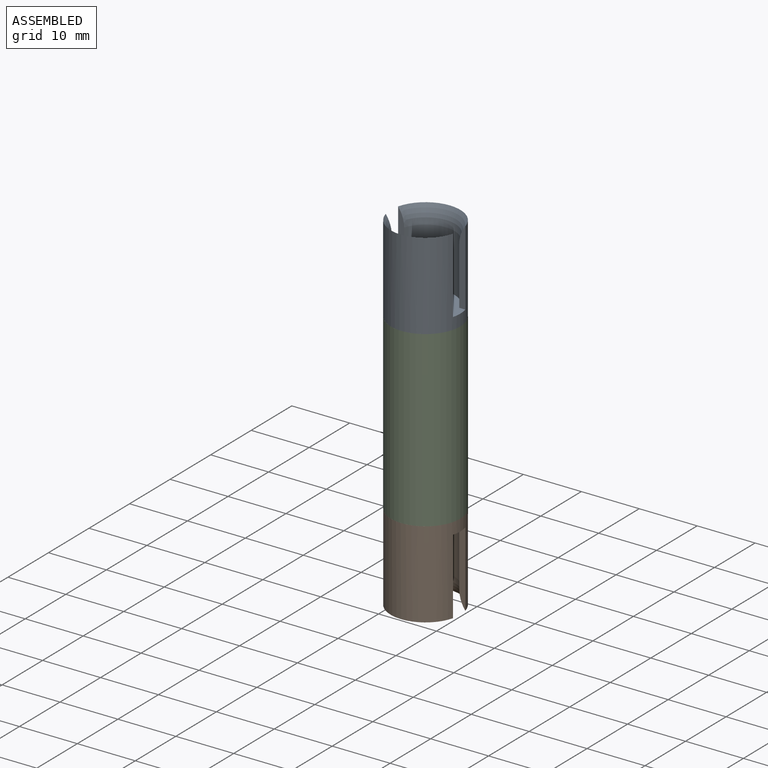
[diagram: assembled view]
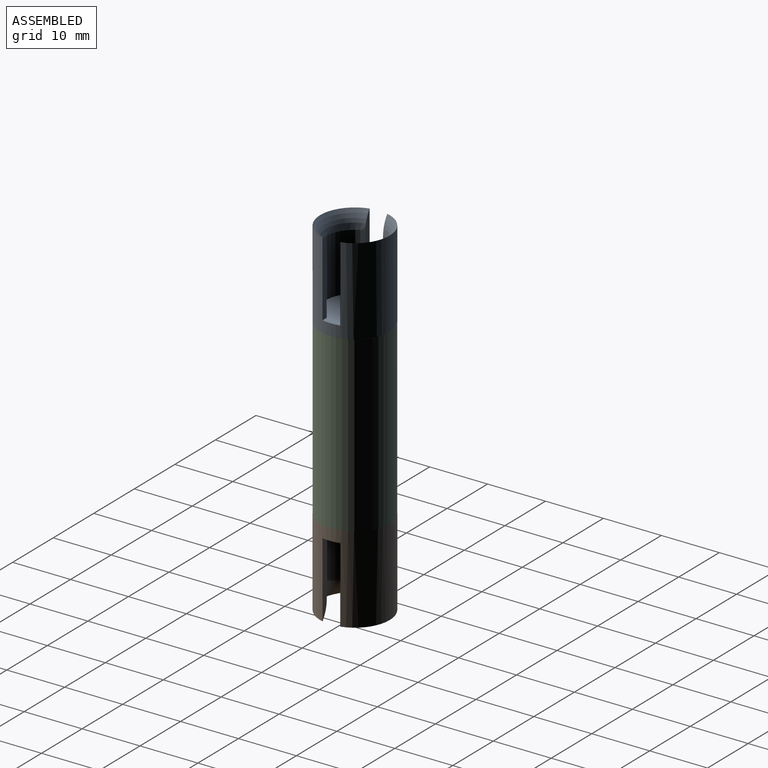
[diagram: assembled view, second angle]
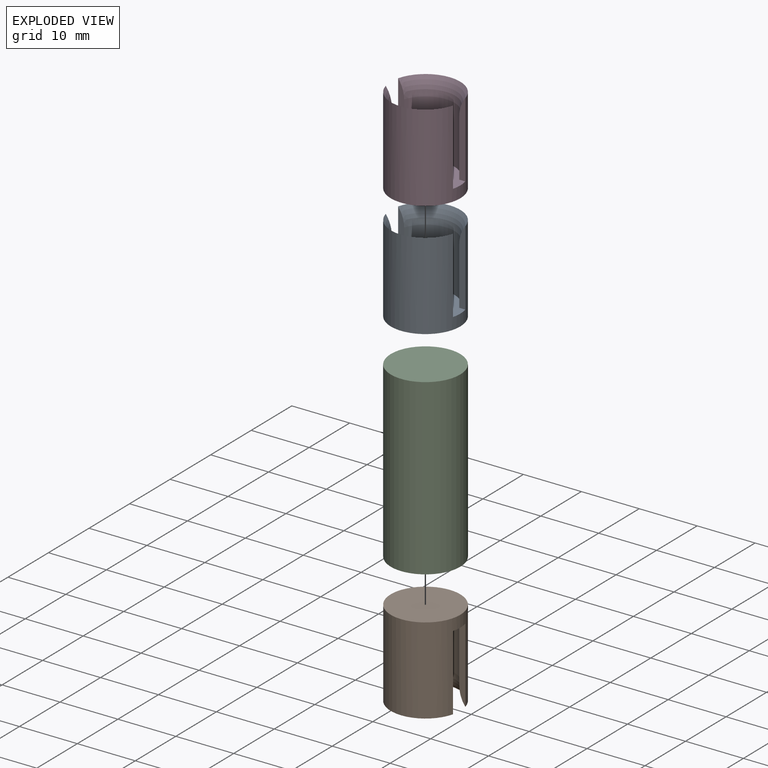
[diagram: exploded view]
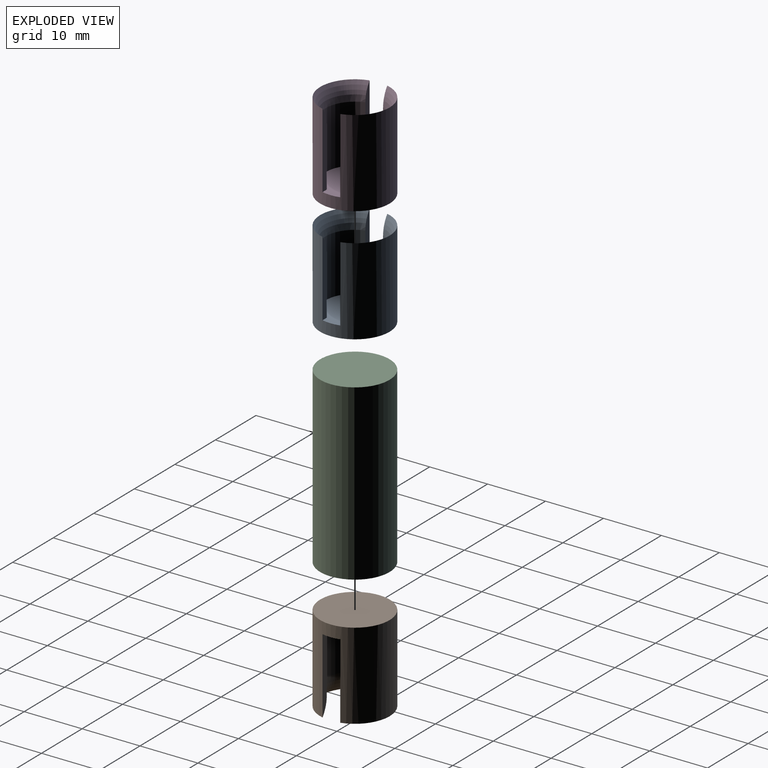
[diagram: exploded view, second angle]
ASSEMBLY  parts=4 mates=2
PART A: 11 faces, bbox 13.6x14x15.6 mm
  f0: cylinder r=6mm len=15mm, axis (0,0,-1), area 485.4mm2, adj f2,f4,f5,f6,f7,f8,f9,f10
  f1: cylinder r=5mm len=9.97mm, axis (0,0,-1), area 125.8mm2, adj f4,f5,f7,f9
  f2: plane 12x12mm, normal (0,0,-1), area 113.1mm2, adj f0
  f3: cylinder r=5mm len=9.97mm, axis (0,0,-1), area 125.8mm2, adj f4,f6,f8,f10
  f4: plane 12x10mm, normal (0,0,1), area 84.7mm2, adj f0,f1,f3,f5,f6,f7,f8
  f5: plane 13x1.04mm, normal (0,1,0), area 12.5mm2, adj f0,f1,f4,f9
  f6: plane 13x1.04mm, normal (0,-1,0), area 12.5mm2, adj f0,f3,f4,f10
  f7: plane 13x1.04mm, normal (0,1,0), area 12.5mm2, adj f0,f1,f4,f9
  f8: plane 13x1.04mm, normal (0,-1,0), area 12.5mm2, adj f0,f3,f4,f10
  f9: torus R=10.08mm, axis (0,0,1), area 44.3mm2, adj f0,f1,f5,f7
  f10: torus R=10.08mm, axis (0,0,1), area 44.3mm2, adj f0,f3,f6,f8
PART B: same geometry as A
PART C: 3 faces, bbox 12x12x30 mm
  f0: cylinder r=6mm len=30mm, axis (0,0,-1), area 1131mm2, adj f1,f2
  f1: plane 12x12mm, normal (0,0,1), area 113.1mm2, adj f0
  f2: plane 12x12mm, normal (0,0,-1), area 113.1mm2, adj f0
PART D: same geometry as A
PLACE A t=(3.25,8.39,2.27)mm
PLACE B rot(axis=(1,0,0),180deg) t=(3.25,8.39,-27.73)mm
PLACE C t=(3.25,8.39,-27.73)mm
PLACE D t=(3.25,8.39,2.27)mm
MATE fastened C.f0 <-> D.f0  axis (0,0,1) through (3.25,8.39,2.27)mm
MATE fastened B.f0 <-> C.f0  axis (0,0,1) through (3.25,8.39,-27.73)mm
